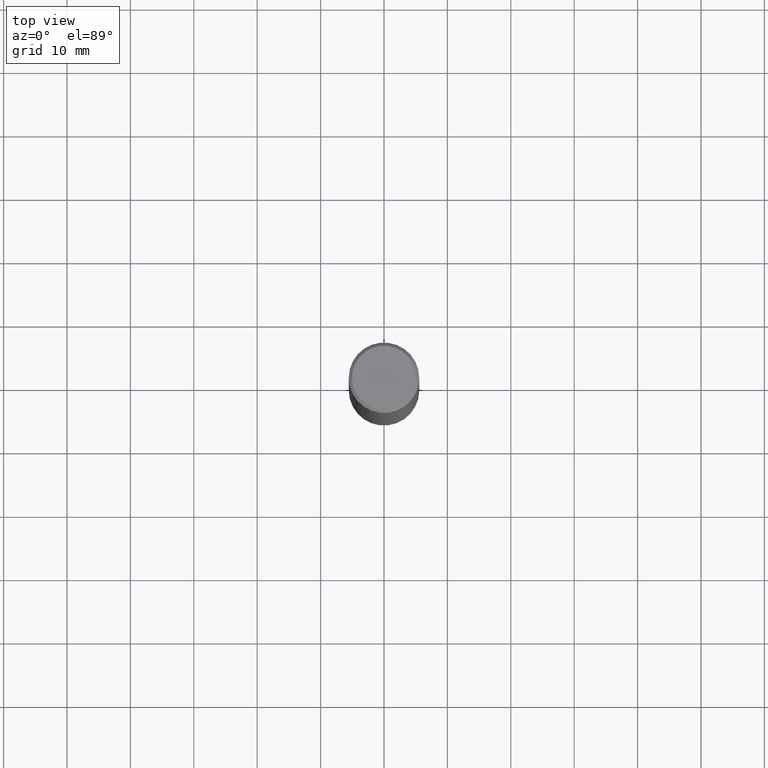
[diagram: clean part render]
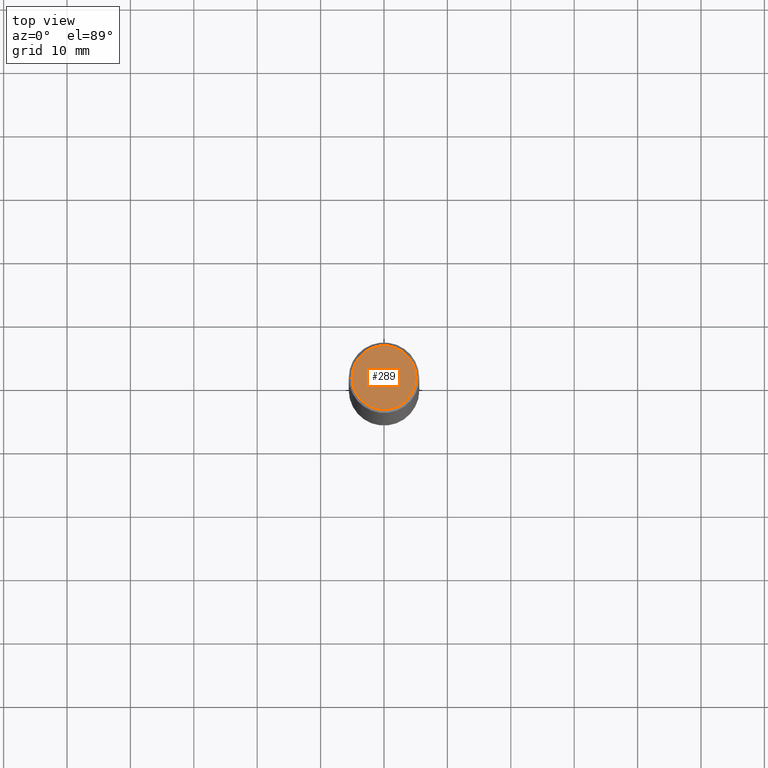
[diagram: same view with one face highlighted and labeled with its STEP entity id]
A machine part, top view. The second image highlights one B-rep face of the part: STEP entity #289.
In plain terms, the highlighted planar face has unit normal (0, -0, -1).
Its self-contained STEP definition (entity closure, byte-faithful):
#13 = ORIENTED_EDGE ( 'NONE', *, *, #249, .T. ) ;
#20 = AXIS2_PLACEMENT_3D ( 'NONE', #80, #294, #297 ) ;
#37 = EDGE_LOOP ( 'NONE', ( #13, #220 ) ) ;
#39 = VERTEX_POINT ( 'NONE', #302 ) ;
#47 = CIRCLE ( 'NONE', #20, 0.1987499999999996769 ) ;
#80 = CARTESIAN_POINT ( 'NONE',  ( 0.000000000000000000, 0.000000000000000000, 0.000000000000000000 ) ) ;
#102 = AXIS2_PLACEMENT_3D ( 'NONE', #112, #296, #203 ) ;
#109 = DIRECTION ( 'NONE',  ( -2.445468806185136597E-29, 3.491481338843145583E-15, 1.000000000000000000 ) ) ;
#112 = CARTESIAN_POINT ( 'NONE',  ( 1.387863832190143063E-15, 0.1987499999999996769, -6.939319160950740954E-16 ) ) ;
#174 = FACE_OUTER_BOUND ( 'NONE', #37, .T. ) ;
#198 = CARTESIAN_POINT ( 'NONE',  ( 0.1987499999999996769, -1.467043770423236480E-15, 9.982525199991768280E-30 ) ) ;
#203 = DIRECTION ( 'NONE',  ( -1.000000000000000000, 6.982962677686265922E-15, -4.876176775795935793E-29 ) ) ;
#220 = ORIENTED_EDGE ( 'NONE', *, *, #223, .T. ) ;
#223 = EDGE_CURVE ( 'NONE', #266, #39, #47, .T. ) ;
#230 = PLANE ( 'NONE',  #102 ) ;
#249 = EDGE_CURVE ( 'NONE', #39, #266, #263, .T. ) ;
#259 = CARTESIAN_POINT ( 'NONE',  ( 0.000000000000000000, 0.000000000000000000, 0.000000000000000000 ) ) ;
#263 = CIRCLE ( 'NONE', #373, 0.1987499999999996769 ) ;
#266 = VERTEX_POINT ( 'NONE', #198 ) ;
#289 = ADVANCED_FACE ( 'NONE', ( #174 ), #230, .F. ) ;
#291 = DIRECTION ( 'NONE',  ( 1.000000000000000000, -6.982962677686267499E-15, 4.876176775795935793E-29 ) ) ;
#294 = DIRECTION ( 'NONE',  ( -2.445468806185136597E-29, 3.491481338843145583E-15, 1.000000000000000000 ) ) ;
#296 = DIRECTION ( 'NONE',  ( 2.438088387897960049E-29, -3.491481338843145188E-15, -1.000000000000000000 ) ) ;
#297 = DIRECTION ( 'NONE',  ( 1.000000000000000000, -6.982962677686267499E-15, 4.876176775795935793E-29 ) ) ;
#302 = CARTESIAN_POINT ( 'NONE',  ( -0.1987499999999996769, 1.422778645578574515E-15, -9.827974342635069682E-30 ) ) ;
#373 = AXIS2_PLACEMENT_3D ( 'NONE', #259, #109, #291 ) ;